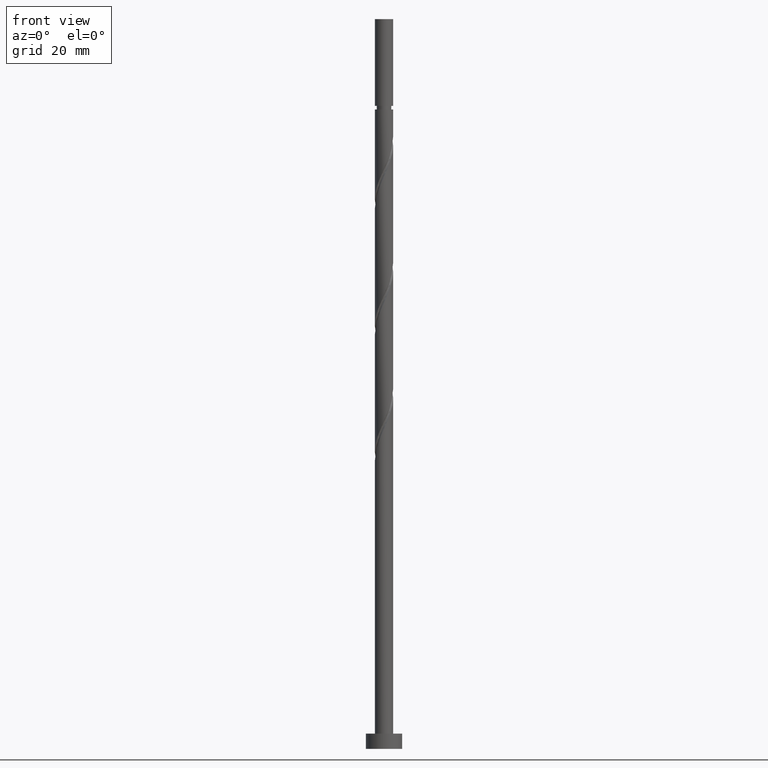
[diagram: clean part render]
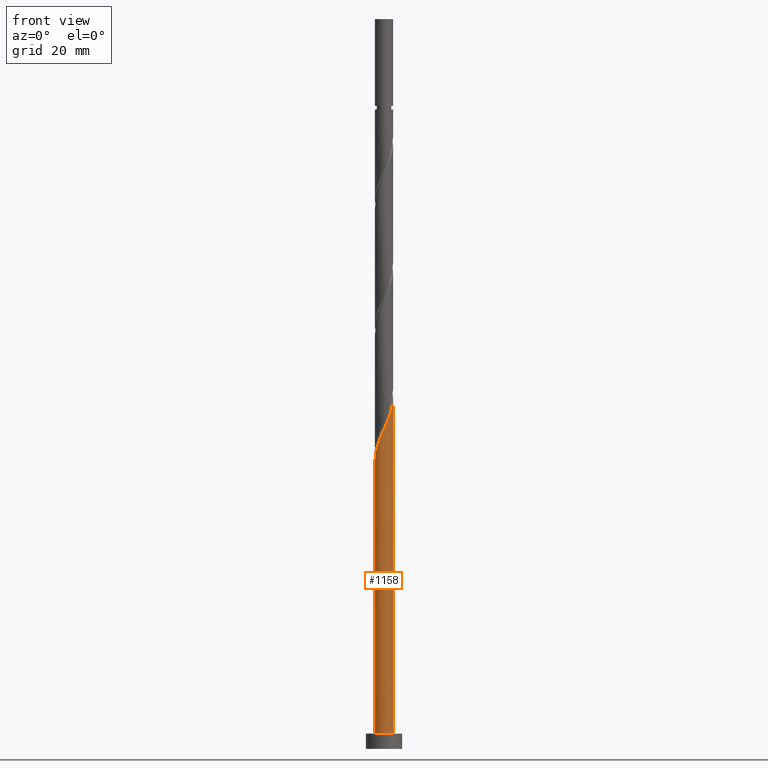
[diagram: same view with one face highlighted and labeled with its STEP entity id]
A machine part, front view. The second image highlights one B-rep face of the part: STEP entity #1158.
In plain terms, the highlighted cylindrical surface (edge-blend (fillet) strip) has radius 3 mm, axis along (-0, -0, -1).
Its self-contained STEP definition (entity closure, byte-faithful):
#78 = VERTEX_POINT ( 'NONE', #1365 ) ;
#96 = CARTESIAN_POINT ( 'NONE',  ( 2.177300491905832747, -2.095722369502527993, 111.0147921486116047 ) ) ;
#104 = CARTESIAN_POINT ( 'NONE',  ( -2.731615850633954068, -1.292657931028937890, 98.19427932809875870 ) ) ;
#116 = LINE ( 'NONE', #709, #920 ) ;
#122 = FACE_OUTER_BOUND ( 'NONE', #788, .T. ) ;
#131 = CARTESIAN_POINT ( 'NONE',  ( -2.080442193850960297, -2.161425519892978375, 100.5981254819449475 ) ) ;
#234 = CARTESIAN_POINT ( 'NONE',  ( -3.000000000000005329, -0.1193193910102997995, 95.52796426527574170 ) ) ;
#243 = CARTESIAN_POINT ( 'NONE',  ( -1.817997620638349909, -2.414036937049631959, 101.3994075332270057 ) ) ;
#356 = ORIENTED_EDGE ( 'NONE', *, *, #795, .T. ) ;
#373 = CARTESIAN_POINT ( 'NONE',  ( 0.2400118315905257205, -3.012488008736836864, 106.2070998409192981 ) ) ;
#383 = CARTESIAN_POINT ( 'NONE',  ( 1.283232999305656596, -2.711699295551230904, 108.6109459947654585 ) ) ;
#391 = CARTESIAN_POINT ( 'NONE',  ( -0.8376755528275001694, -2.880676946169975494, 103.8032536870731377 ) ) ;
#413 = CARTESIAN_POINT ( 'NONE',  ( -2.846604600309533328, -0.9470175550097440498, 97.39299727681674312 ) ) ;
#439 = EDGE_CURVE ( 'NONE', #525, #78, #1375, .T. ) ;
#504 = ORIENTED_EDGE ( 'NONE', *, *, #439, .T. ) ;
#518 = CARTESIAN_POINT ( 'NONE',  ( -1.187453060654103387, -2.778964719248856685, 103.0019716357910937 ) ) ;
#525 = VERTEX_POINT ( 'NONE', #881 ) ;
#555 = CARTESIAN_POINT ( 'NONE',  ( 0.000000000000000000, 0.000000000000000000, 241.0000000000000000 ) ) ;
#660 = LINE ( 'NONE', #1215, #1793 ) ;
#665 = CARTESIAN_POINT ( 'NONE',  ( 2.396435889809654718, -1.804742371096837772, 111.8160741998936771 ) ) ;
#688 = CARTESIAN_POINT ( 'NONE',  ( -2.342886767063571796, -1.908814102736324125, 99.79684343066291774 ) ) ;
#704 = EDGE_CURVE ( 'NONE', #1358, #78, #660, .T. ) ;
#709 = CARTESIAN_POINT ( 'NONE',  ( -3.000000000000000444, 0.000000000000000000, 241.0000000000000000 ) ) ;
#739 = CARTESIAN_POINT ( 'NONE',  ( 0.000000000000000000, 0.000000000000000000, 5.000000000000000000 ) ) ;
#771 = AXIS2_PLACEMENT_3D ( 'NONE', #555, #1546, #1811 ) ;
#788 = EDGE_LOOP ( 'NONE', ( #1377, #1435, #356, #504 ) ) ;
#795 = EDGE_CURVE ( 'NONE', #1398, #525, #116, .T. ) ;
#807 = CARTESIAN_POINT ( 'NONE',  ( 0.5969924622639735112, -2.940000000000004832, 107.0083818922013421 ) ) ;
#825 = CARTESIAN_POINT ( 'NONE',  ( 2.901834587494015238, -0.8438280090813020662, 114.2199203537398517 ) ) ;
#845 = CARTESIAN_POINT ( 'NONE',  ( -3.000000000000005329, 6.939555479444983031E-15, 95.26379334964276779 ) ) ;
#881 = CARTESIAN_POINT ( 'NONE',  ( -3.000000000000000444, 0.000000000000000000, 5.000000000000000000 ) ) ;
#920 = VECTOR ( 'NONE', #1832, 1000.000000000000000 ) ;
#969 = CARTESIAN_POINT ( 'NONE',  ( 1.612492905673893251, -2.555886599839288120, 109.4122280460475025 ) ) ;
#1085 = CARTESIAN_POINT ( 'NONE',  ( -0.4878980450008971181, -2.982389173091093859, 104.6045357383551959 ) ) ;
#1146 = DIRECTION ( 'NONE',  ( 1.000000000000000000, 0.000000000000000000, 0.000000000000000000 ) ) ;
#1158 = ADVANCED_FACE ( 'NONE', ( #122 ), #1784, .T. ) ;
#1159 = CARTESIAN_POINT ( 'NONE',  ( 3.000000000000003997, -0.2437693156111449544, 115.5574259456277986 ) ) ;
#1185 = DIRECTION ( 'NONE',  ( 0.000000000000000000, 0.000000000000000000, 1.000000000000000000 ) ) ;
#1215 = CARTESIAN_POINT ( 'NONE',  ( 3.000000000000000444, 3.673940397442060361E-16, 241.0000000000000000 ) ) ;
#1231 = CARTESIAN_POINT ( 'NONE',  ( 2.615571287713478466, -1.513762372691146885, 112.6173562511757353 ) ) ;
#1262 = CARTESIAN_POINT ( 'NONE',  ( -2.990523579387033948, -0.2382618751084433495, 95.79043317425264092 ) ) ;
#1269 = CARTESIAN_POINT ( 'NONE',  ( -1.502725340646227092, -2.596500828149244988, 102.2006895845090497 ) ) ;
#1358 = VERTEX_POINT ( 'NONE', #1820 ) ;
#1360 = EDGE_CURVE ( 'NONE', #1398, #1358, #1542, .T. ) ;
#1365 = CARTESIAN_POINT ( 'NONE',  ( 3.000000000000000444, 3.673940397442060361E-16, 5.000000000000000000 ) ) ;
#1370 = CARTESIAN_POINT ( 'NONE',  ( 0.9539730929374193868, -2.867511991263172355, 107.8096639434833861 ) ) ;
#1375 = CIRCLE ( 'NONE', #1703, 3.000000000000000444 ) ;
#1377 = ORIENTED_EDGE ( 'NONE', *, *, #704, .F. ) ;
#1389 = CARTESIAN_POINT ( 'NONE',  ( 2.960644198141486605, -0.4843407189274824831, 115.0212024050218673 ) ) ;
#1398 = VERTEX_POINT ( 'NONE', #1721 ) ;
#1408 = CARTESIAN_POINT ( 'NONE',  ( -2.537251308848762932, -1.600736016882631008, 98.99556137938085953 ) ) ;
#1435 = ORIENTED_EDGE ( 'NONE', *, *, #1360, .F. ) ;
#1516 = CARTESIAN_POINT ( 'NONE',  ( 1.894896698789863887, -2.325804484670908945, 110.2135100973295607 ) ) ;
#1525 = CARTESIAN_POINT ( 'NONE',  ( 2.758702937603747074, -1.178795190886223754, 113.4186383024577651 ) ) ;
#1542 =( BOUNDED_CURVE ( )  B_SPLINE_CURVE ( 2, ( #845, #234, #1262, #1678, #413, #104, #1408, #688, #131, #243, #1269, #518, #391, #1085, #1643, #373, #807, #1370, #383, #969, #1516, #96, #665, #1231, #1525, #825, #1389, #1159, #1590 ),
 .UNSPECIFIED., .F., .T. ) 
 B_SPLINE_CURVE_WITH_KNOTS ( ( 3, 2, 2, 2, 2, 2, 2, 2, 2, 2, 2, 2, 2, 2, 3 ),
 ( 0.05452716259738318166, 0.05769230769230770939, 0.06730769230769229061, 0.07692307692307687184, 0.08653846153846156408, 0.09615384615384614531, 0.1057692307692307265, 0.1153846153846154188, 0.1250000000000000000, 0.1346153846153845812, 0.1442307692307692735, 0.1538461538461538547, 0.1634615384615384359, 0.1730769230769231282, 0.1795271625973831053 ),
 .UNSPECIFIED. ) 
 CURVE ( )  GEOMETRIC_REPRESENTATION_ITEM ( )  RATIONAL_B_SPLINE_CURVE ( ( 0.9061636035682882895, 0.9069090390690768277, 0.9090909090909334855, 0.9024626128164370265, 0.9090909090909334855, 0.9024626128164370265, 0.9090909090909334855, 0.9024626128164370265, 0.9090909090909334855, 0.9024626128164370265, 0.9090909090909334855, 0.9024626128164370265, 0.9090909090909334855, 0.9024626128164370265, 0.9090909090909334855, 0.9024626128164370265, 0.9090909090909334855, 0.9024626128164370265, 0.9090909090909334855, 0.9024626128164370265, 0.9090909090909334855, 0.9024626128164370265, 0.9090909090909334855, 0.9024626128164370265, 0.9090909090909334855, 0.9024626128164370265, 0.9090909090909334855, 0.9046444828382937953, 0.9061636035682882895 ) ) 
 REPRESENTATION_ITEM ( '' )  );
#1546 = DIRECTION ( 'NONE',  ( -0.000000000000000000, -0.000000000000000000, -1.000000000000000000 ) ) ;
#1590 = CARTESIAN_POINT ( 'NONE',  ( 3.000000000000004441, 1.031959758796775264E-15, 116.0971266829761248 ) ) ;
#1643 = CARTESIAN_POINT ( 'NONE',  ( -0.1239431067051857543, -2.997438590913966028, 105.4058177896372683 ) ) ;
#1678 = CARTESIAN_POINT ( 'NONE',  ( -2.961593349985112145, -0.6013771789905507648, 96.59171522553469913 ) ) ;
#1703 = AXIS2_PLACEMENT_3D ( 'NONE', #739, #1185, #1146 ) ;
#1721 = CARTESIAN_POINT ( 'NONE',  ( -3.000000000000005329, 6.939555479444983031E-15, 95.26379334964278200 ) ) ;
#1780 = DIRECTION ( 'NONE',  ( -0.000000000000000000, -0.000000000000000000, -1.000000000000000000 ) ) ;
#1784 = CYLINDRICAL_SURFACE ( 'NONE', #771, 3.000000000000000444 ) ;
#1793 = VECTOR ( 'NONE', #1780, 1000.000000000000000 ) ;
#1811 = DIRECTION ( 'NONE',  ( -1.000000000000000000, 0.000000000000000000, 0.000000000000000000 ) ) ;
#1820 = CARTESIAN_POINT ( 'NONE',  ( 3.000000000000004885, 1.031959758796775264E-15, 116.0971266829761248 ) ) ;
#1832 = DIRECTION ( 'NONE',  ( -0.000000000000000000, -0.000000000000000000, -1.000000000000000000 ) ) ;